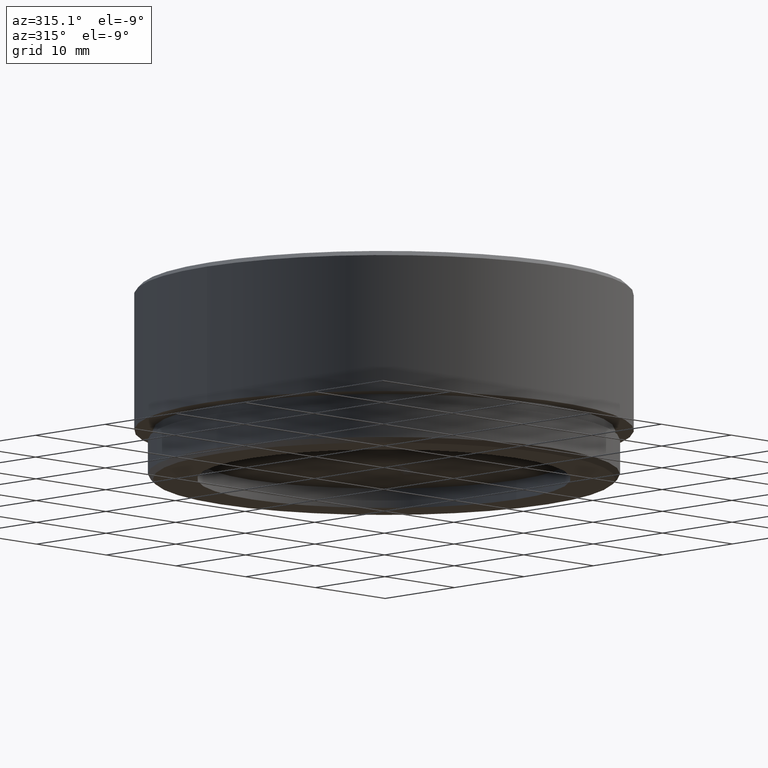
[diagram: clean part render]
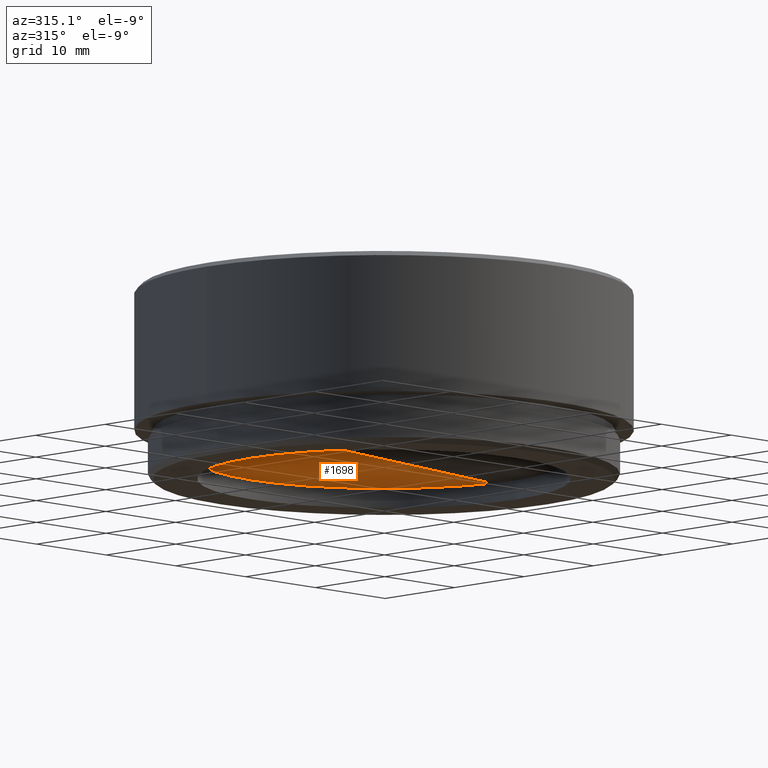
[diagram: same view with one face highlighted and labeled with its STEP entity id]
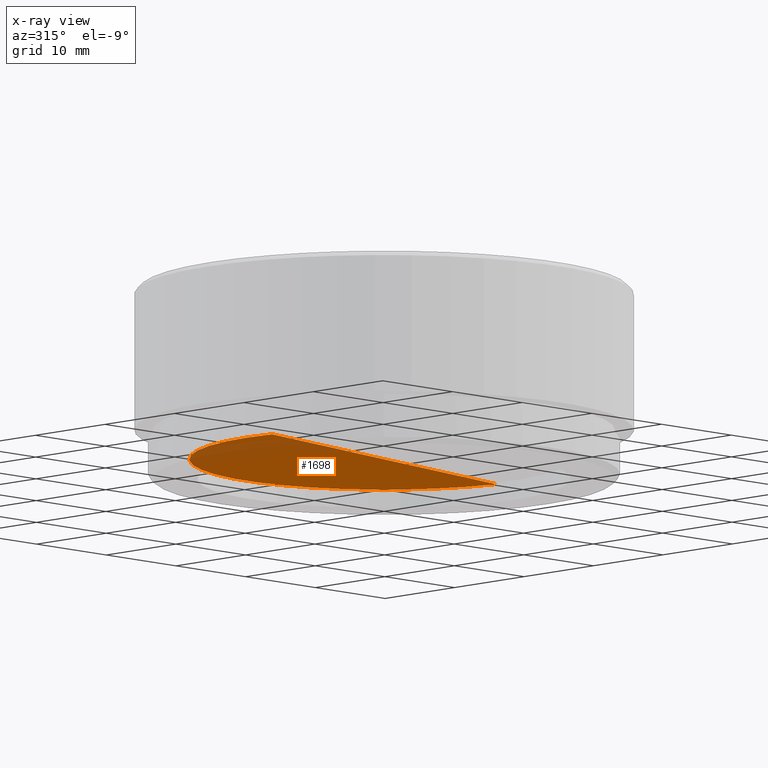
[diagram: x-ray of the same camera — body ghosted, the highlighted face saturated]
A machine part, auxiliary view. The second image highlights one B-rep face of the part: STEP entity #1698.
The next image is the same camera in x-ray: the body ghosted, the highlighted face saturated — about 23% of this face is hidden behind the body in this view.
In plain terms, the highlighted conical surface has half-angle 89.986 deg.
Its self-contained STEP definition (entity closure, byte-faithful):
#15 = EDGE_CURVE ( 'NONE', #1060, #1767, #1663, .T. ) ;
#63 = DIRECTION ( 'NONE',  ( 0.000000000000000000, 0.000000000000000000, 1.000000000000000000 ) ) ;
#228 = VERTEX_POINT ( 'NONE', #1659 ) ;
#231 = CARTESIAN_POINT ( 'NONE',  ( 0.000000000000000000, 0.000000000000000000, -8.000000000000000000 ) ) ;
#329 = ORIENTED_EDGE ( 'NONE', *, *, #15, .T. ) ;
#369 = EDGE_CURVE ( 'NONE', #228, #1767, #390, .T. ) ;
#373 = EDGE_CURVE ( 'NONE', #228, #1060, #972, .T. ) ;
#390 = LINE ( 'NONE', #231, #1053 ) ;
#508 = DIRECTION ( 'NONE',  ( -1.000000000000000000, 0.000000000000000000, 0.000000000000000000 ) ) ;
#532 = CARTESIAN_POINT ( 'NONE',  ( 0.000000000000000000, 0.000000000000000000, -8.000000000000000000 ) ) ;
#586 = AXIS2_PLACEMENT_3D ( 'NONE', #1388, #1076, #508 ) ;
#654 = DIRECTION ( 'NONE',  ( 1.000000000000000000, 0.000000000000000000, 0.000000000000000000 ) ) ;
#680 = CARTESIAN_POINT ( 'NONE',  ( -19.80004801896200206, 2.437050070616645092E-15, -7.995246111106519393 ) ) ;
#707 = CARTESIAN_POINT ( 'NONE',  ( 19.80004801896200206, 0.000000000000000000, -7.995246111106519393 ) ) ;
#747 = VECTOR ( 'NONE', #1116, 1000.000000000000000 ) ;
#796 = CARTESIAN_POINT ( 'NONE',  ( 0.000000000000000000, 0.000000000000000000, 992.0000000000000000 ) ) ;
#885 = ORIENTED_EDGE ( 'NONE', *, *, #369, .F. ) ;
#972 = LINE ( 'NONE', #532, #747 ) ;
#1053 = VECTOR ( 'NONE', #1852, 1000.000000000000000 ) ;
#1060 = VERTEX_POINT ( 'NONE', #680 ) ;
#1076 = DIRECTION ( 'NONE',  ( 0.000000000000000000, 0.000000000000000000, -1.000000000000000000 ) ) ;
#1116 = DIRECTION ( 'NONE',  ( -0.9999999711772408206, 1.224646763849653674E-16, 0.0002400948094622279276 ) ) ;
#1388 = CARTESIAN_POINT ( 'NONE',  ( 0.000000000000000000, 0.000000000000000000, -7.995246111106519393 ) ) ;
#1452 = ORIENTED_EDGE ( 'NONE', *, *, #373, .T. ) ;
#1564 = AXIS2_PLACEMENT_3D ( 'NONE', #796, #63, #654 ) ;
#1602 = EDGE_LOOP ( 'NONE', ( #885, #1452, #329 ) ) ;
#1652 = CONICAL_SURFACE ( 'NONE', #1564, 4165021.198988319840, 1.570556231983127660 ) ;
#1659 = CARTESIAN_POINT ( 'NONE',  ( 0.000000000000000000, 0.000000000000000000, -8.000000000000000000 ) ) ;
#1663 = CIRCLE ( 'NONE', #586, 19.80004801896200206 ) ;
#1698 = ADVANCED_FACE ( 'NONE', ( #1850 ), #1652, .T. ) ;
#1767 = VERTEX_POINT ( 'NONE', #707 ) ;
#1850 = FACE_OUTER_BOUND ( 'NONE', #1602, .T. ) ;
#1852 = DIRECTION ( 'NONE',  ( 0.9999999711772408206, 0.000000000000000000, 0.0002400948094622279276 ) ) ;